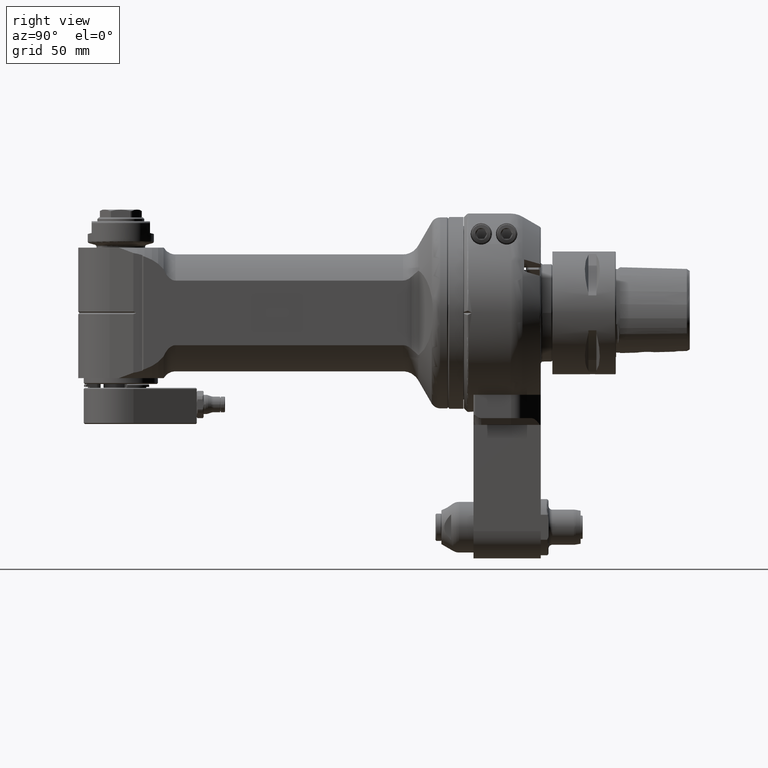
[diagram: clean part render]
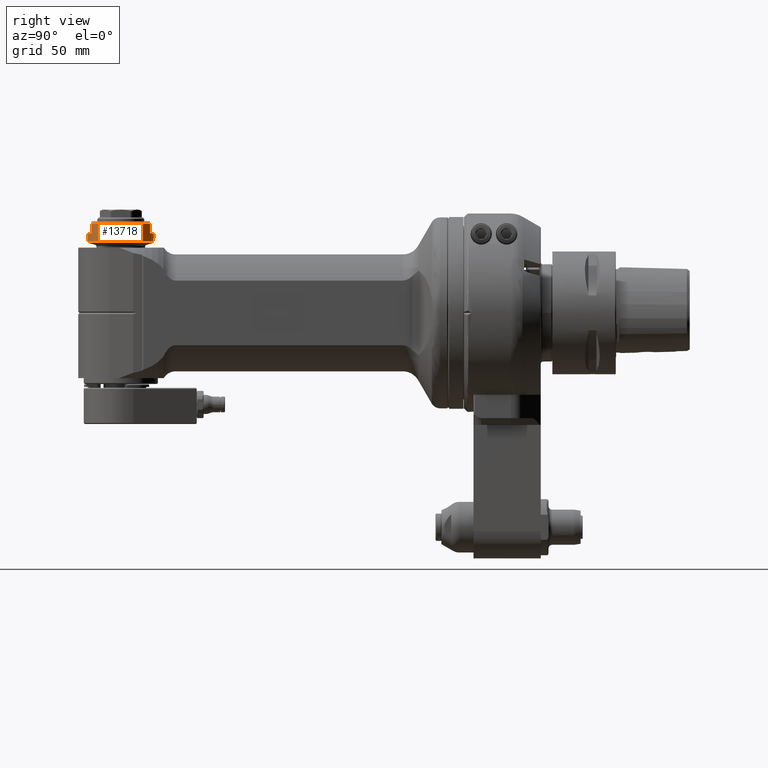
[diagram: same view with one face highlighted and labeled with its STEP entity id]
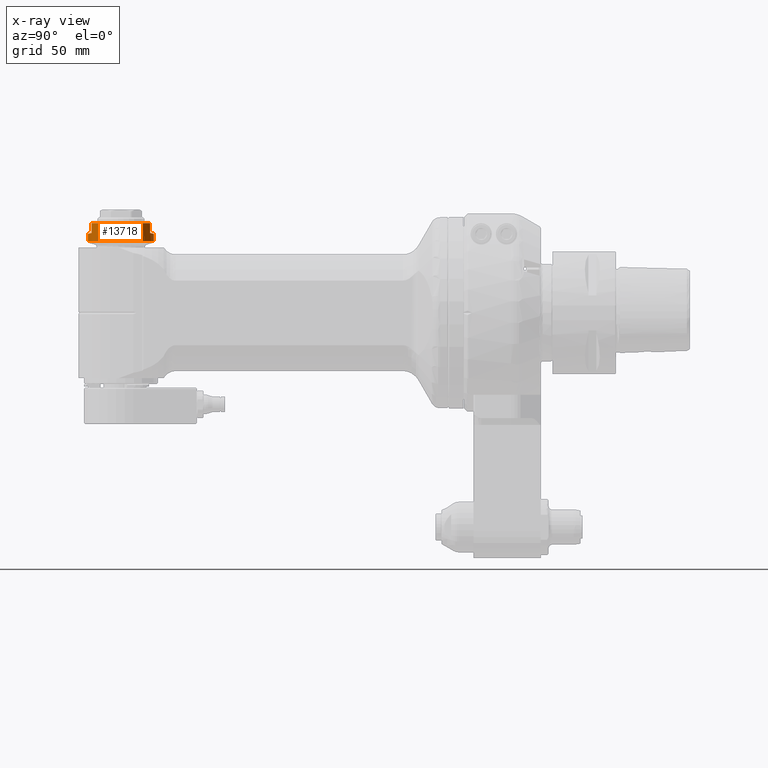
[diagram: x-ray of the same camera — body ghosted, the highlighted face saturated]
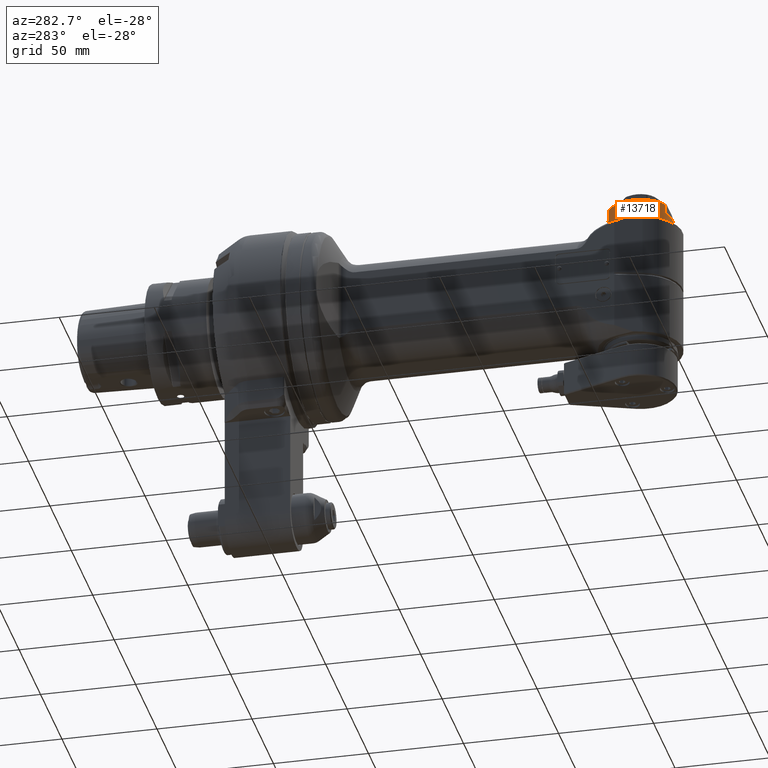
[diagram: same view with one face highlighted and labeled with its STEP entity id]
A machine part, right view. The second image highlights one B-rep face of the part: STEP entity #13718.
The next image is the same camera in x-ray: the body ghosted, the highlighted face saturated — about 0% of this face is hidden behind the body in this view.
A second angle (auxiliary view) of the same face is appended — the face is thin or edge-on in the first view.
In plain terms, the highlighted cylindrical surface (bore or boss wall) has radius 17 mm, axis along (-0, 0, 1).
Its self-contained STEP definition (entity closure, byte-faithful):
#80=ELLIPSE('',#15082,17.5996950669713,17.);
#81=ELLIPSE('',#15083,17.5996950669713,17.);
#1148=LINE('',#27169,#2040);
#1149=LINE('',#27183,#2041);
#1151=LINE('',#27190,#2043);
#1152=LINE('',#27194,#2044);
#1153=LINE('',#27197,#2045);
#2040=VECTOR('',#18197,5.000000000003);
#2041=VECTOR('',#18198,5.);
#2043=VECTOR('',#18206,5.);
#2044=VECTOR('',#18209,5.);
#2045=VECTOR('',#18212,17.);
#2534=CYLINDRICAL_SURFACE('',#15080,17.);
#3610=FACE_OUTER_BOUND('',#4516,.T.);
#4516=EDGE_LOOP('',(#11580,#11581,#11582,#11583,#11584,#11585,#11586,#11587,
#11588,#11589,#11590,#11591,#11592));
#5396=CIRCLE('',#15078,17.);
#5397=CIRCLE('',#15081,17.);
#5398=CIRCLE('',#15084,17.);
#5399=CIRCLE('',#15085,17.);
#5400=CIRCLE('',#15086,17.);
#6512=VERTEX_POINT('',#27139);
#6513=VERTEX_POINT('',#27152);
#6514=VERTEX_POINT('',#27167);
#6515=VERTEX_POINT('',#27168);
#6516=VERTEX_POINT('',#27182);
#6517=VERTEX_POINT('',#27186);
#6518=VERTEX_POINT('',#27189);
#6519=VERTEX_POINT('',#27191);
#6520=VERTEX_POINT('',#27193);
#6521=VERTEX_POINT('',#27196);
#6522=VERTEX_POINT('',#27198);
#8283=EDGE_CURVE('',#6512,#6513,#5396,.T.);
#8285=EDGE_CURVE('',#6514,#6515,#1148,.T.);
#8287=EDGE_CURVE('',#6516,#6513,#1149,.T.);
#8289=EDGE_CURVE('',#6514,#6517,#5397,.T.);
#8290=EDGE_CURVE('',#6516,#6515,#80,.T.);
#8291=EDGE_CURVE('',#6512,#6518,#1151,.T.);
#8292=EDGE_CURVE('',#6519,#6518,#81,.T.);
#8293=EDGE_CURVE('',#6519,#6520,#1152,.T.);
#8294=EDGE_CURVE('',#6517,#6520,#5398,.T.);
#8295=EDGE_CURVE('',#6517,#6521,#1153,.T.);
#8296=EDGE_CURVE('',#6522,#6521,#5399,.T.);
#8297=EDGE_CURVE('',#6521,#6522,#5400,.T.);
#11580=ORIENTED_EDGE('',*,*,#8289,.F.);
#11581=ORIENTED_EDGE('',*,*,#8285,.T.);
#11582=ORIENTED_EDGE('',*,*,#8290,.F.);
#11583=ORIENTED_EDGE('',*,*,#8287,.T.);
#11584=ORIENTED_EDGE('',*,*,#8283,.F.);
#11585=ORIENTED_EDGE('',*,*,#8291,.T.);
#11586=ORIENTED_EDGE('',*,*,#8292,.F.);
#11587=ORIENTED_EDGE('',*,*,#8293,.T.);
#11588=ORIENTED_EDGE('',*,*,#8294,.F.);
#11589=ORIENTED_EDGE('',*,*,#8295,.T.);
#11590=ORIENTED_EDGE('',*,*,#8296,.F.);
#11591=ORIENTED_EDGE('',*,*,#8297,.F.);
#11592=ORIENTED_EDGE('',*,*,#8295,.F.);
#13718=ADVANCED_FACE('',(#3610),#2534,.T.);
#15078=AXIS2_PLACEMENT_3D('',#27153,#18193,#18194);
#15080=AXIS2_PLACEMENT_3D('',#27185,#18200,#18201);
#15081=AXIS2_PLACEMENT_3D('',#27187,#18202,#18203);
#15082=AXIS2_PLACEMENT_3D('',#27188,#18204,#18205);
#15083=AXIS2_PLACEMENT_3D('',#27192,#18207,#18208);
#15084=AXIS2_PLACEMENT_3D('',#27195,#18210,#18211);
#15085=AXIS2_PLACEMENT_3D('',#27199,#18213,#18214);
#15086=AXIS2_PLACEMENT_3D('',#27200,#18215,#18216);
#18193=DIRECTION('center_axis',(0.,-1.,0.));
#18194=DIRECTION('ref_axis',(0.,0.,1.));
#18197=DIRECTION('',(0.,1.,0.));
#18198=DIRECTION('',(0.,-1.,0.));
#18200=DIRECTION('center_axis',(0.,-1.,0.));
#18201=DIRECTION('ref_axis',(0.,0.,1.));
#18202=DIRECTION('center_axis',(0.,-1.,0.));
#18203=DIRECTION('ref_axis',(-0.882352941176485,0.,-0.470588235294092));
#18204=DIRECTION('center_axis',(-0.258819045102493,-0.965925826289076,0.));
#18205=DIRECTION('ref_axis',(-0.965925826289076,0.258819045102493,0.));
#18206=DIRECTION('',(0.,1.,0.));
#18207=DIRECTION('center_axis',(0.258819045102493,-0.965925826289076,0.));
#18208=DIRECTION('ref_axis',(-0.965925826289076,-0.258819045102493,0.));
#18209=DIRECTION('',(0.,-1.,0.));
#18210=DIRECTION('center_axis',(0.,-1.,0.));
#18211=DIRECTION('ref_axis',(-0.882352941176485,0.,-0.470588235294092));
#18212=DIRECTION('',(0.,1.,0.));
#18213=DIRECTION('center_axis',(0.,1.,0.));
#18214=DIRECTION('ref_axis',(-1.,0.,0.));
#18215=DIRECTION('center_axis',(0.,1.,0.));
#18216=DIRECTION('ref_axis',(-1.,0.,0.));
#27139=CARTESIAN_POINT('',(222.9999999553,-46.,8.));
#27152=CARTESIAN_POINT('',(192.9999999553,-46.,8.));
#27153=CARTESIAN_POINT('Origin',(207.9999999553,-46.,3.451154572006E-14));
#27167=CARTESIAN_POINT('',(192.9999999553,-46.,-8.));
#27168=CARTESIAN_POINT('',(192.9999999553,-41.,-8.));
#27169=CARTESIAN_POINT('',(192.9999999553,-46.,-8.));
#27182=CARTESIAN_POINT('',(192.9999999553,-41.,8.));
#27183=CARTESIAN_POINT('',(192.9999999553,-41.,8.));
#27185=CARTESIAN_POINT('Origin',(207.9999999553,-40.5,3.038516571706E-14));
#27186=CARTESIAN_POINT('',(207.9999999553,-46.,-17.));
#27187=CARTESIAN_POINT('Origin',(207.9999999553,-46.,3.451154572006E-14));
#27188=CARTESIAN_POINT('Origin',(207.9999999553,-45.0192378864616,3.038516571706E-14));
#27189=CARTESIAN_POINT('',(222.9999999553,-41.,8.));
#27190=CARTESIAN_POINT('',(222.9999999553,-46.,8.));
#27191=CARTESIAN_POINT('',(222.9999999553,-41.,-8.));
#27192=CARTESIAN_POINT('Origin',(207.9999999553,-45.0192378864664,3.038516571706E-14));
#27193=CARTESIAN_POINT('',(222.9999999553,-46.,-8.));
#27194=CARTESIAN_POINT('',(222.9999999553,-41.,-8.));
#27195=CARTESIAN_POINT('Origin',(207.9999999553,-46.,3.451154572006E-14));
#27196=CARTESIAN_POINT('',(207.9999999553,-36.74042535392,-17.));
#27197=CARTESIAN_POINT('',(207.9999999553,-40.5,-17.));
#27198=CARTESIAN_POINT('',(224.9999999553,-36.74042535392,2.96464409775405E-14));
#27199=CARTESIAN_POINT('Origin',(207.9999999553,-36.74042535392,2.756454141899E-14));
#27200=CARTESIAN_POINT('Origin',(207.9999999553,-36.74042535392,2.756454141899E-14));